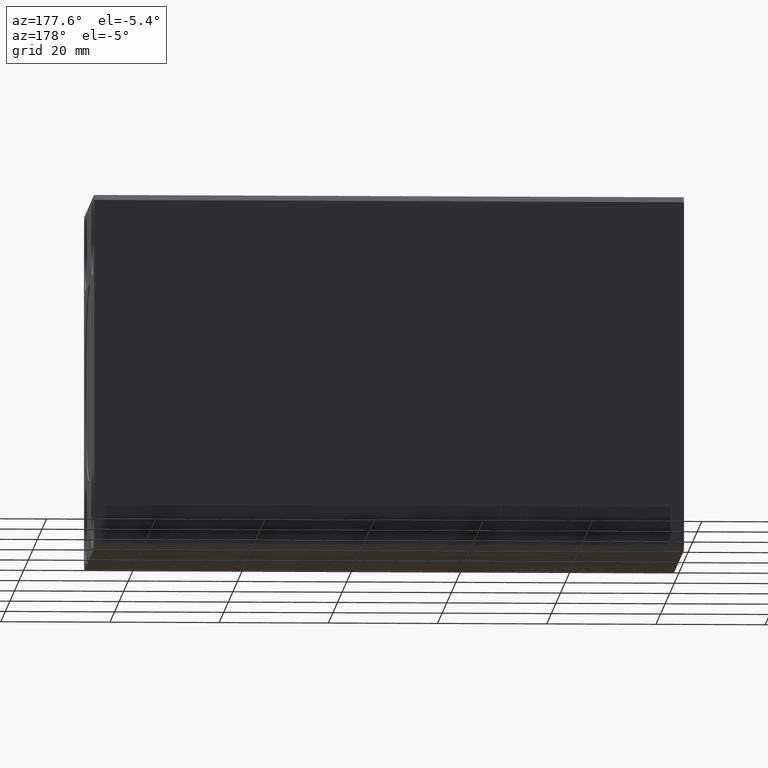
[diagram: clean part render]
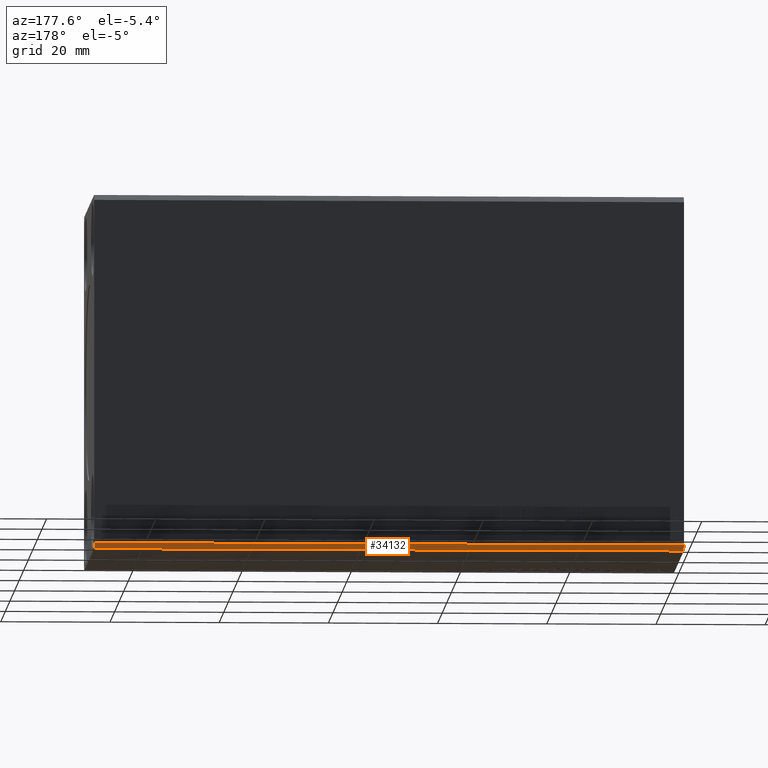
[diagram: same view with one face highlighted and labeled with its STEP entity id]
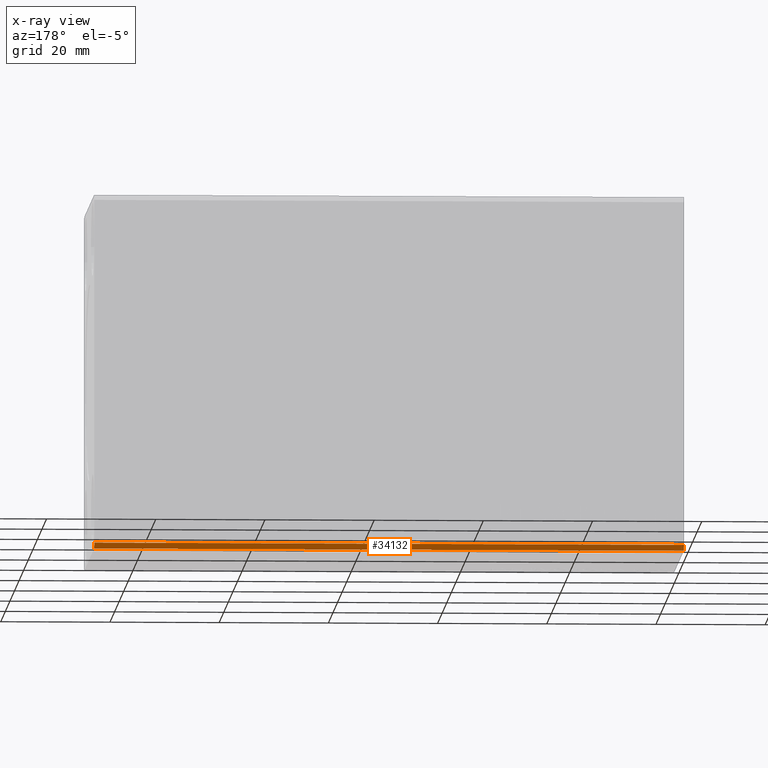
[diagram: x-ray of the same camera — body ghosted, the highlighted face saturated]
A machine part, auxiliary view. The second image highlights one B-rep face of the part: STEP entity #34132.
The next image is the same camera in x-ray: the body ghosted, the highlighted face saturated — about 0% of this face is hidden behind the body in this view.
In plain terms, the highlighted planar face has unit normal (0, -0.7071, 0.7071).
Its self-contained STEP definition (entity closure, byte-faithful):
#902 = EDGE_CURVE ( 'NONE', #5709, #39704, #12647, .T. ) ;
#2420 = FACE_OUTER_BOUND ( 'NONE', #3654, .T. ) ;
#2771 = CARTESIAN_POINT ( 'NONE',  ( 108.0000000000000000, 21.49999999999999645, -32.50000000000000000 ) ) ;
#3654 = EDGE_LOOP ( 'NONE', ( #24700, #6311, #37833, #13079 ) ) ;
#5709 = VERTEX_POINT ( 'NONE', #34547 ) ;
#5751 = EDGE_CURVE ( 'NONE', #35532, #5709, #12197, .T. ) ;
#5892 = VECTOR ( 'NONE', #28818, 1000.000000000000114 ) ;
#6191 = CARTESIAN_POINT ( 'NONE',  ( 0.000000000000000000, 21.49999999999999645, -32.50000000000000000 ) ) ;
#6311 = ORIENTED_EDGE ( 'NONE', *, *, #902, .F. ) ;
#6349 = AXIS2_PLACEMENT_3D ( 'NONE', #28825, #21948, #25603 ) ;
#10068 = VERTEX_POINT ( 'NONE', #6191 ) ;
#12000 = EDGE_CURVE ( 'NONE', #35532, #10068, #38228, .T. ) ;
#12197 = LINE ( 'NONE', #15423, #28990 ) ;
#12425 = DIRECTION ( 'NONE',  ( -1.000000000000000000, -0.000000000000000000, -0.000000000000000000 ) ) ;
#12647 = LINE ( 'NONE', #15869, #38490 ) ;
#13079 = ORIENTED_EDGE ( 'NONE', *, *, #12000, .T. ) ;
#15423 = CARTESIAN_POINT ( 'NONE',  ( 108.0000000000000000, 21.49999999999999645, -32.50000000000000000 ) ) ;
#15869 = CARTESIAN_POINT ( 'NONE',  ( 108.0000000000000000, 22.49999999999999645, -31.50000000000000000 ) ) ;
#18136 = VECTOR ( 'NONE', #12425, 1000.000000000000000 ) ;
#20328 = EDGE_CURVE ( 'NONE', #10068, #39704, #35702, .T. ) ;
#21948 = DIRECTION ( 'NONE',  ( 0.000000000000000000, -0.7071067811865475727, 0.7071067811865475727 ) ) ;
#24700 = ORIENTED_EDGE ( 'NONE', *, *, #20328, .T. ) ;
#25603 = DIRECTION ( 'NONE',  ( 0.000000000000000000, -0.7071067811865474617, -0.7071067811865474617 ) ) ;
#28818 = DIRECTION ( 'NONE',  ( 0.000000000000000000, 0.7071067811865474617, 0.7071067811865474617 ) ) ;
#28825 = CARTESIAN_POINT ( 'NONE',  ( 108.0000000000000000, 21.49999999999999645, -32.50000000000000000 ) ) ;
#28990 = VECTOR ( 'NONE', #38201, 1000.000000000000114 ) ;
#29053 = PLANE ( 'NONE',  #6349 ) ;
#30880 = CARTESIAN_POINT ( 'NONE',  ( 0.000000000000000000, 22.49999999999999645, -31.50000000000000000 ) ) ;
#34132 = ADVANCED_FACE ( 'NONE', ( #2420 ), #29053, .F. ) ;
#34547 = CARTESIAN_POINT ( 'NONE',  ( 108.0000000000000000, 22.49999999999999645, -31.50000000000000000 ) ) ;
#35532 = VERTEX_POINT ( 'NONE', #37548 ) ;
#35643 = DIRECTION ( 'NONE',  ( -1.000000000000000000, -0.000000000000000000, -0.000000000000000000 ) ) ;
#35702 = LINE ( 'NONE', #41911, #5892 ) ;
#37548 = CARTESIAN_POINT ( 'NONE',  ( 108.0000000000000000, 21.49999999999999645, -32.50000000000000000 ) ) ;
#37833 = ORIENTED_EDGE ( 'NONE', *, *, #5751, .F. ) ;
#38201 = DIRECTION ( 'NONE',  ( 0.000000000000000000, 0.7071067811865474617, 0.7071067811865474617 ) ) ;
#38228 = LINE ( 'NONE', #2771, #18136 ) ;
#38490 = VECTOR ( 'NONE', #35643, 1000.000000000000000 ) ;
#39704 = VERTEX_POINT ( 'NONE', #30880 ) ;
#41911 = CARTESIAN_POINT ( 'NONE',  ( 0.000000000000000000, 21.49999999999999645, -32.50000000000000000 ) ) ;